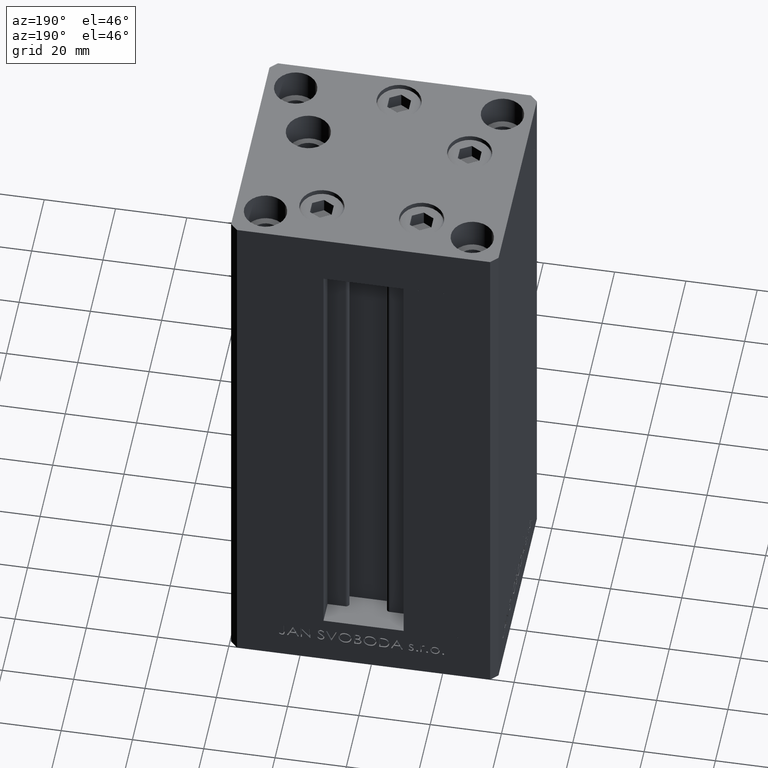
[diagram: clean part render]
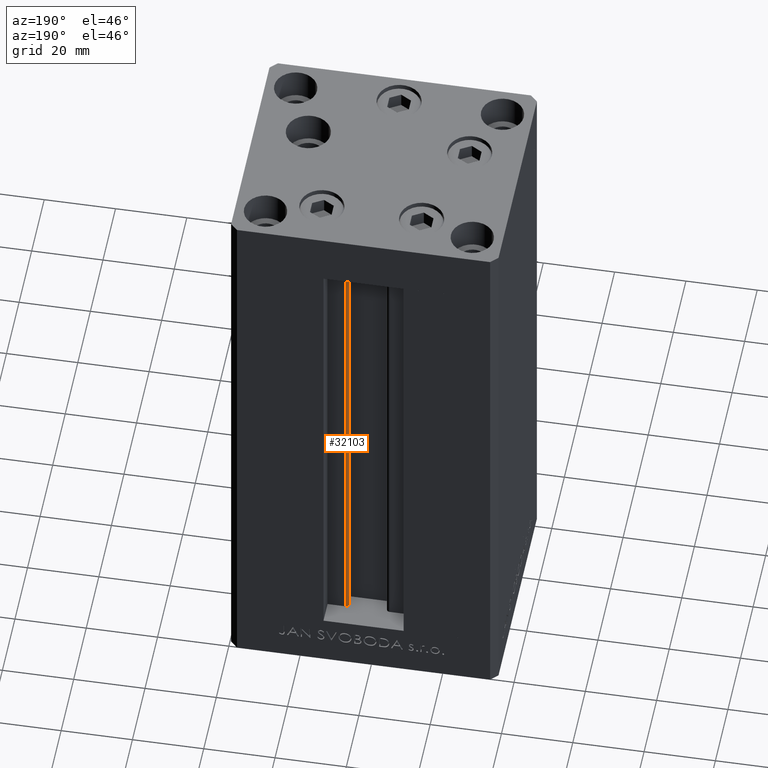
[diagram: same view with one face highlighted and labeled with its STEP entity id]
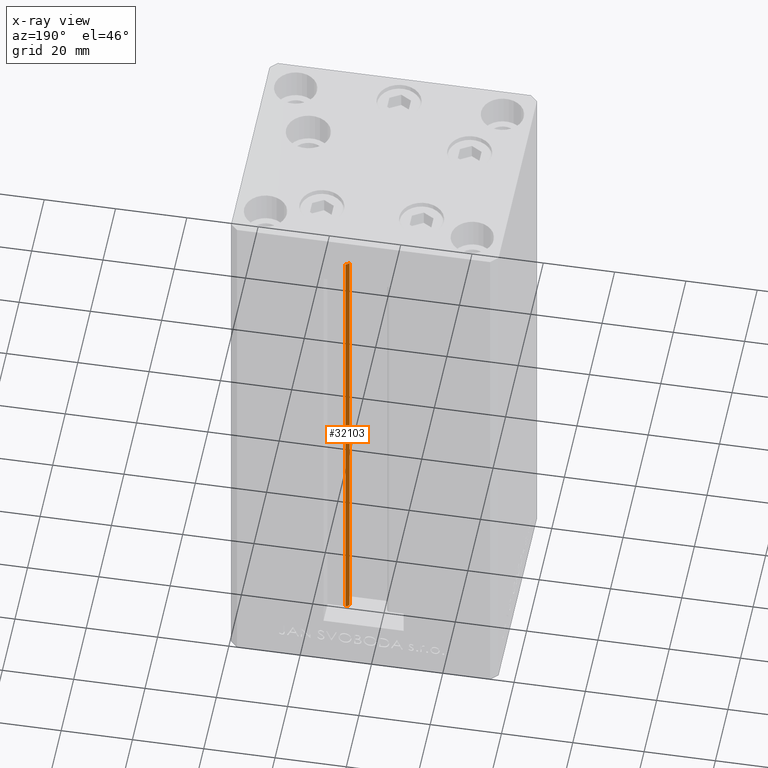
[diagram: x-ray of the same camera — body ghosted, the highlighted face saturated]
A machine part, auxiliary view. The second image highlights one B-rep face of the part: STEP entity #32103.
The next image is the same camera in x-ray: the body ghosted, the highlighted face saturated — about 0% of this face is hidden behind the body in this view.
In plain terms, the highlighted cylindrical surface (edge-blend (fillet) strip) has radius 0.9333 mm, axis along (0, 0, 1).
Its self-contained STEP definition (entity closure, byte-faithful):
#6098 = LINE ( 'NONE', #36274, #16334 ) ;
#7170 = CARTESIAN_POINT ( 'NONE',  ( 5.375042956467947164, 24.59999999999899245, 0.000000000000000000 ) ) ;
#7562 = VERTEX_POINT ( 'NONE', #12675 ) ;
#7609 = CIRCLE ( 'NONE', #27349, 0.9333333333340008142 ) ;
#8288 = AXIS2_PLACEMENT_3D ( 'NONE', #46301, #43074, #42821 ) ;
#8972 = CYLINDRICAL_SURFACE ( 'NONE', #12517, 0.9333333333340008142 ) ;
#10829 = VERTEX_POINT ( 'NONE', #22989 ) ;
#10949 = DIRECTION ( 'NONE',  ( 1.000000000000000000, 0.000000000000000000, 0.000000000000000000 ) ) ;
#12517 = AXIS2_PLACEMENT_3D ( 'NONE', #17353, #16387, #20587 ) ;
#12675 = CARTESIAN_POINT ( 'NONE',  ( 6.183333333334001480, 25.99999999999999289, 136.0000000000000000 ) ) ;
#13161 = FACE_OUTER_BOUND ( 'NONE', #32635, .T. ) ;
#16334 = VECTOR ( 'NONE', #21656, 1000.000000000000000 ) ;
#16387 = DIRECTION ( 'NONE',  ( -0.000000000000000000, -0.000000000000000000, 1.000000000000000000 ) ) ;
#17353 = CARTESIAN_POINT ( 'NONE',  ( 6.183333333334001480, 25.06666666666599141, 0.000000000000000000 ) ) ;
#17580 = DIRECTION ( 'NONE',  ( -0.000000000000000000, -0.000000000000000000, 1.000000000000000000 ) ) ;
#19707 = EDGE_CURVE ( 'NONE', #21188, #7562, #34361, .T. ) ;
#20587 = DIRECTION ( 'NONE',  ( 1.000000000000000000, 0.000000000000000000, 0.000000000000000000 ) ) ;
#21188 = VERTEX_POINT ( 'NONE', #22895 ) ;
#21656 = DIRECTION ( 'NONE',  ( -0.000000000000000000, -0.000000000000000000, 1.000000000000000000 ) ) ;
#22895 = CARTESIAN_POINT ( 'NONE',  ( 5.375042956467948052, 24.59999999999899245, 136.0000000000000000 ) ) ;
#22989 = CARTESIAN_POINT ( 'NONE',  ( 6.183333333334001480, 25.99999999999999289, 0.000000000000000000 ) ) ;
#24560 = EDGE_CURVE ( 'NONE', #28837, #21188, #36157, .T. ) ;
#26783 = ORIENTED_EDGE ( 'NONE', *, *, #19707, .T. ) ;
#27349 = AXIS2_PLACEMENT_3D ( 'NONE', #45819, #44852, #10949 ) ;
#27577 = EDGE_CURVE ( 'NONE', #28837, #10829, #7609, .T. ) ;
#28347 = EDGE_CURVE ( 'NONE', #10829, #7562, #6098, .T. ) ;
#28837 = VERTEX_POINT ( 'NONE', #7170 ) ;
#28857 = VECTOR ( 'NONE', #17580, 1000.000000000000000 ) ;
#28958 = CARTESIAN_POINT ( 'NONE',  ( 5.375042956467947164, 24.59999999999899245, 0.000000000000000000 ) ) ;
#32103 = ADVANCED_FACE ( 'NONE', ( #13161 ), #8972, .T. ) ;
#32635 = EDGE_LOOP ( 'NONE', ( #41182, #40954, #42054, #26783 ) ) ;
#34361 = CIRCLE ( 'NONE', #8288, 0.9333333333340008142 ) ;
#36157 = LINE ( 'NONE', #28958, #28857 ) ;
#36274 = CARTESIAN_POINT ( 'NONE',  ( 6.183333333334001480, 25.99999999999999289, 0.000000000000000000 ) ) ;
#40954 = ORIENTED_EDGE ( 'NONE', *, *, #27577, .F. ) ;
#41182 = ORIENTED_EDGE ( 'NONE', *, *, #28347, .F. ) ;
#42054 = ORIENTED_EDGE ( 'NONE', *, *, #24560, .T. ) ;
#42821 = DIRECTION ( 'NONE',  ( 1.000000000000000000, 0.000000000000000000, 0.000000000000000000 ) ) ;
#43074 = DIRECTION ( 'NONE',  ( 0.000000000000000000, 0.000000000000000000, -1.000000000000000000 ) ) ;
#44852 = DIRECTION ( 'NONE',  ( -0.000000000000000000, -0.000000000000000000, -1.000000000000000000 ) ) ;
#45819 = CARTESIAN_POINT ( 'NONE',  ( 6.183333333334001480, 25.06666666666599141, 0.000000000000000000 ) ) ;
#46301 = CARTESIAN_POINT ( 'NONE',  ( 6.183333333334001480, 25.06666666666599141, 136.0000000000000000 ) ) ;